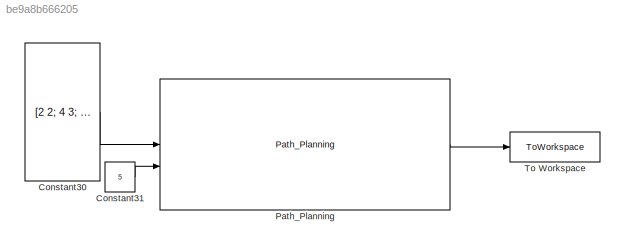
MODEL slx_be9a8b666205
KIND model
CONFIG AbsTol = auto
CONFIG EnableMultiTasking = off
CONFIG FixedStep = auto
CONFIG MaxStep = auto
CONFIG MinStep = auto
CONFIG RelTol = 1e-3
CONFIG SampleTimeConstraint = Unconstrained
CONFIG SolverName = VariableStepAuto
CONFIG StartTime = 0.0
CONFIG StopFcn = ChainSampling_Plot
CONFIG StopTime = 10.0
BLOCK [Constant] Constant30
  Value = [2 2; 4 3; 7 2; 8 0; 10 -2; 12 0; 15 -1; 16 -3; 13 -4; 13 -1]
BLOCK [Constant] Constant31
  OutDataTypeStr = int32
  Value = 5
BLOCK [Reference] Path_Planning  REF=Pathfinding_lib/Path_Planning
  SourceBlock = Pathfinding_lib/Path_Planning
  SourceType = SubSystem
BLOCK [ToWorkspace] To Workspace
  FixptAsFi = on
  MaxDataPoints = inf
  SampleTime = 20
  SaveFormat = Structure
  VariableName = ChainSampling
LINE Constant30:1 -> Path_Planning:1
LINE Constant31:1 -> Path_Planning:2
LINE Path_Planning:1 -> To Workspace:1
